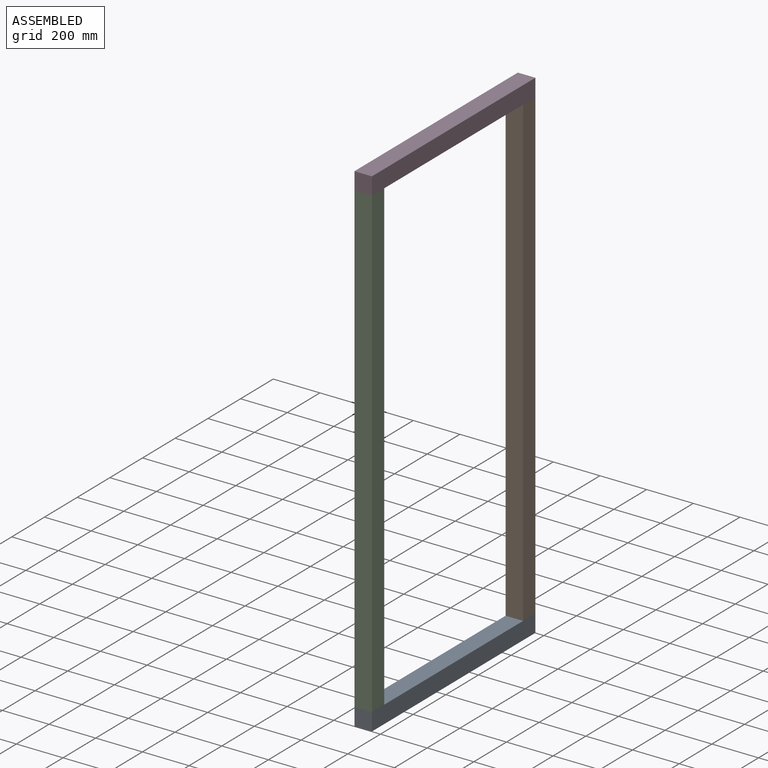
[diagram: assembled view]
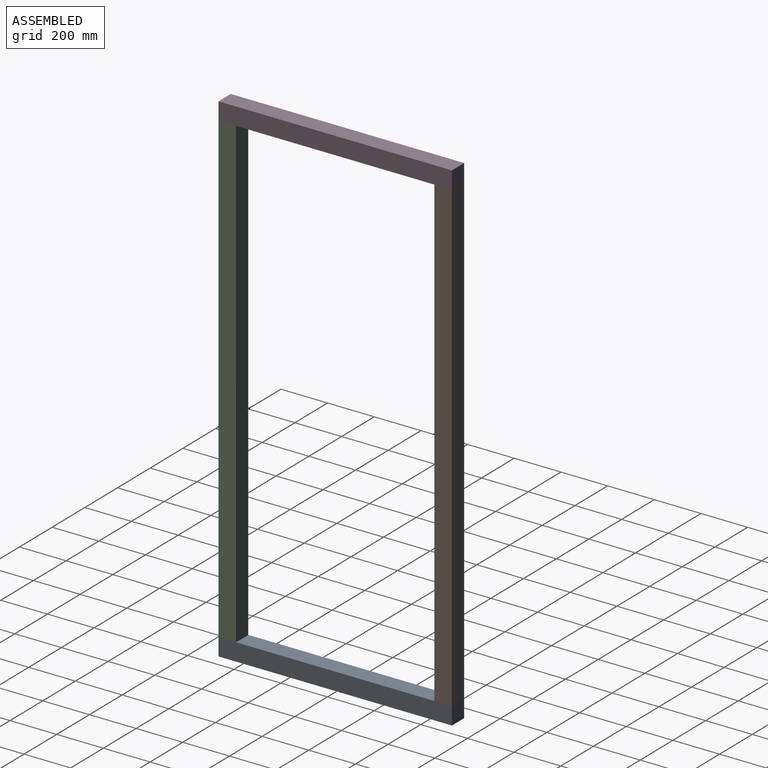
[diagram: assembled view, second angle]
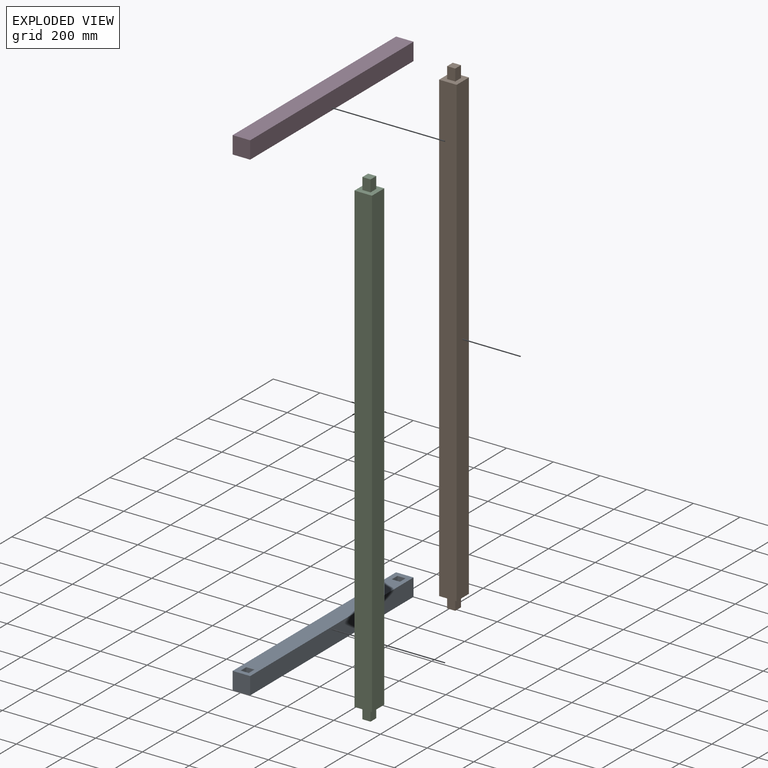
[diagram: exploded view]
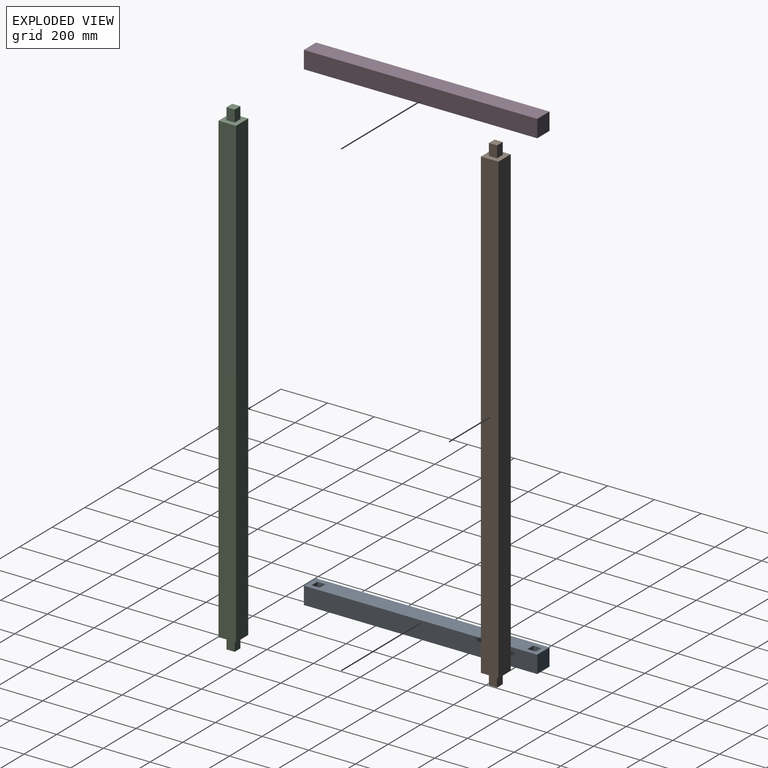
[diagram: exploded view, second angle]
ASSEMBLY  parts=4 mates=9
PART A: 24 faces, bbox 75x1000x75 mm
  f0: plane 1000x75mm, normal (1,0,0), area 75000mm2, adj f1,f3,f4,f5
  f1: plane 1000x75mm, normal (0,0,1), area 75000mm2, adj f0,f2,f4,f5
  f2: plane 1000x75mm, normal (-1,0,0), area 75000mm2, adj f1,f3,f4,f5
  f3: plane 1000x75mm, normal (0,0,-1), area 71958mm2, adj f0,f2,f4,f5,f16,f17,f18,f19
  f4: plane 75x75mm, normal (0,-1,0), area 5625mm2, adj f0,f1,f2,f3
  f5: plane 75x75mm, normal (0,1,0), area 5625mm2, adj f0,f1,f2,f3
  f6: plane 48x35mm, normal (-1,0,0), area 1680mm2, adj f7,f9,f10,f16
  f7: plane 48x35mm, normal (0,1,0), area 1680mm2, adj f6,f8,f10,f18
  f8: plane 48x35mm, normal (1,0,0), area 1680mm2, adj f7,f9,f10,f19
  f9: plane 48x35mm, normal (0,-1,0), area 1680mm2, adj f6,f8,f10,f17
  f10: plane 35x35mm, normal (0,0,-1), area 1225mm2, adj f6,f7,f8,f9
  f11: plane 48x35mm, normal (1,0,0), area 1680mm2, adj f12,f14,f15,f21
  f12: plane 48x35mm, normal (0,-1,0), area 1680mm2, adj f11,f13,f15,f23
  f13: plane 48x35mm, normal (-1,0,0), area 1680mm2, adj f12,f14,f15,f22
  f14: plane 48x35mm, normal (0,1,0), area 1680mm2, adj f11,f13,f15,f20
  f15: plane 35x35mm, normal (0,0,-1), area 1225mm2, adj f11,f12,f13,f14
  f16: cylinder r=2mm len=39mm, axis (0,1,0), area 114.5mm2, adj f3,f6,f17,f18
  f17: cylinder r=2mm len=39mm, axis (-1,0,0), area 114.5mm2, adj f3,f9,f16,f19
  f18: cylinder r=2mm len=39mm, axis (1,0,0), area 114.5mm2, adj f3,f7,f16,f19
  f19: cylinder r=2mm len=39mm, axis (0,-1,0), area 114.5mm2, adj f3,f8,f17,f18
  f20: cylinder r=2mm len=39mm, axis (1,0,0), area 114.5mm2, adj f3,f14,f21,f22
  f21: cylinder r=2mm len=39mm, axis (0,-1,0), area 114.5mm2, adj f3,f11,f20,f23
  f22: cylinder r=2mm len=39mm, axis (0,1,0), area 114.5mm2, adj f3,f13,f20,f23
  f23: cylinder r=2mm len=39mm, axis (-1,0,0), area 114.5mm2, adj f3,f12,f21,f22
PART B: 16 faces, bbox 75x75x2100 mm
  f0: plane 75x75mm, normal (0,0,-1), area 4400mm2, adj f2,f3,f4,f5,f11,f12,f13,f14
  f1: plane 75x75mm, normal (0,0,1), area 4400mm2, adj f2,f3,f4,f5,f6,f7,f8,f9
  f2: plane 2000x75mm, normal (1,0,0), area 150000mm2, adj f0,f1,f3,f5
  f3: plane 2000x75mm, normal (0,1,0), area 150000mm2, adj f0,f1,f2,f4
  f4: plane 2000x75mm, normal (-1,0,0), area 150000mm2, adj f0,f1,f3,f5
  f5: plane 2000x75mm, normal (0,-1,0), area 150000mm2, adj f0,f1,f2,f4
  f6: plane 50x35mm, normal (0,-1,0), area 1750mm2, adj f1,f7,f9,f10
  f7: plane 50x35mm, normal (1,0,0), area 1750mm2, adj f1,f6,f8,f10
  f8: plane 50x35mm, normal (0,1,0), area 1750mm2, adj f1,f7,f9,f10
  f9: plane 50x35mm, normal (-1,0,0), area 1750mm2, adj f1,f6,f8,f10
  f10: plane 35x35mm, normal (0,0,1), area 1225mm2, adj f6,f7,f8,f9
  f11: plane 50x35mm, normal (1,0,0), area 1750mm2, adj f0,f12,f14,f15
  f12: plane 50x35mm, normal (0,-1,0), area 1750mm2, adj f0,f11,f13,f15
  f13: plane 50x35mm, normal (-1,0,0), area 1750mm2, adj f0,f12,f14,f15
  f14: plane 50x35mm, normal (0,1,0), area 1750mm2, adj f0,f11,f13,f15
  f15: plane 35x35mm, normal (0,0,-1), area 1225mm2, adj f11,f12,f13,f14
PART C: same geometry as B
PART D: same geometry as A
PLACE A rot(axis=(1,0,0),180deg) t=(-230.61,838.25,-274.17)mm
PLACE B t=(-230.61,1300.75,-236.67)mm
PLACE C t=(-230.61,375.75,-236.67)mm fixed
PLACE D t=(-230.61,838.25,1800.83)mm
MATE planar B.f7 <-> D.f6  axis (1,0,0) through (-213.11,1300.75,1788.33)mm
MATE planar A.f6 <-> C.f11  axis (-1,0,0) through (-213.11,375.75,-238.67)mm
MATE planar A.f9 <-> C.f12  axis (0,1,0) through (-230.61,358.25,-262.67)mm
MATE planar D.f3 <-> B.f1  axis (0,0,-1) through (-250.11,1281.25,1763.33)mm
MATE planar A.f3 <-> C.f0  axis (0,0,1) through (-230.61,838.25,-236.67)mm
MATE planar D.f11 <-> C.f9  axis (1,0,0) through (-248.11,375.75,1789.33)mm
MATE planar C.f6 <-> D.f14  axis (0,-1,0) through (-230.61,358.25,1788.33)mm
MATE planar B.f8 <-> D.f9  axis (0,1,0) through (-230.61,1318.25,1788.33)mm
MATE planar D.f3 <-> C.f1  axis (0,0,-1) through (-230.61,838.25,1763.33)mm
